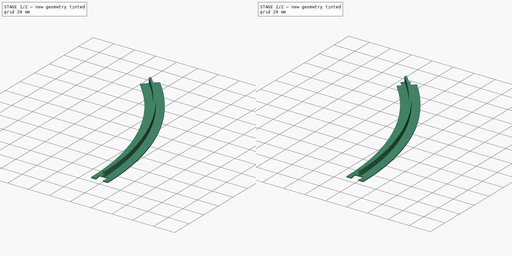
[diagram: build sequence overview — one tinted view per stage of 2, left to right]
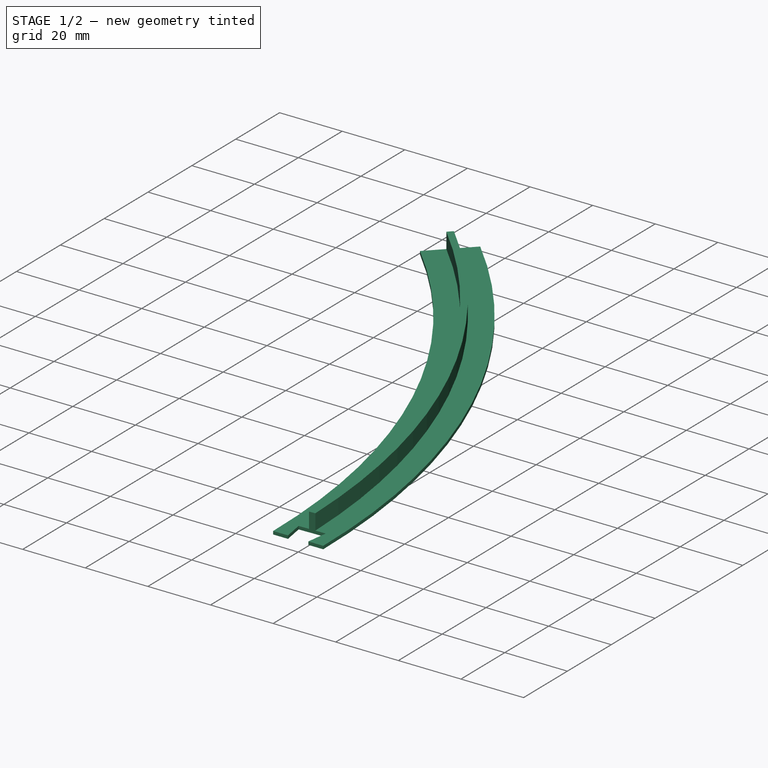
[diagram: stage 1 of 2 — iso view after this stage's code; geometry added in this stage tinted green]
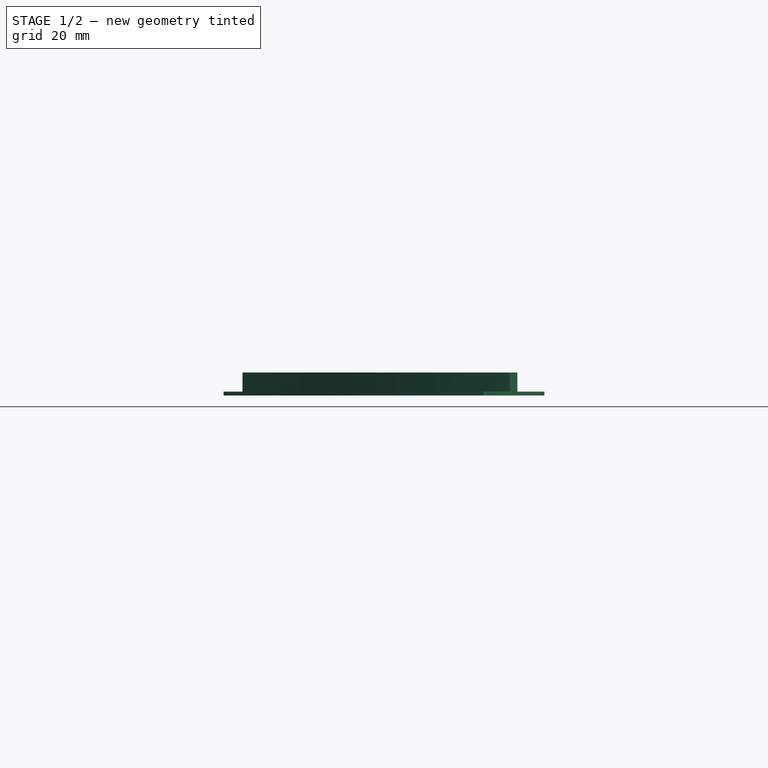
[diagram: stage 1 of 2 — front view after this stage's code; geometry added in this stage tinted green]
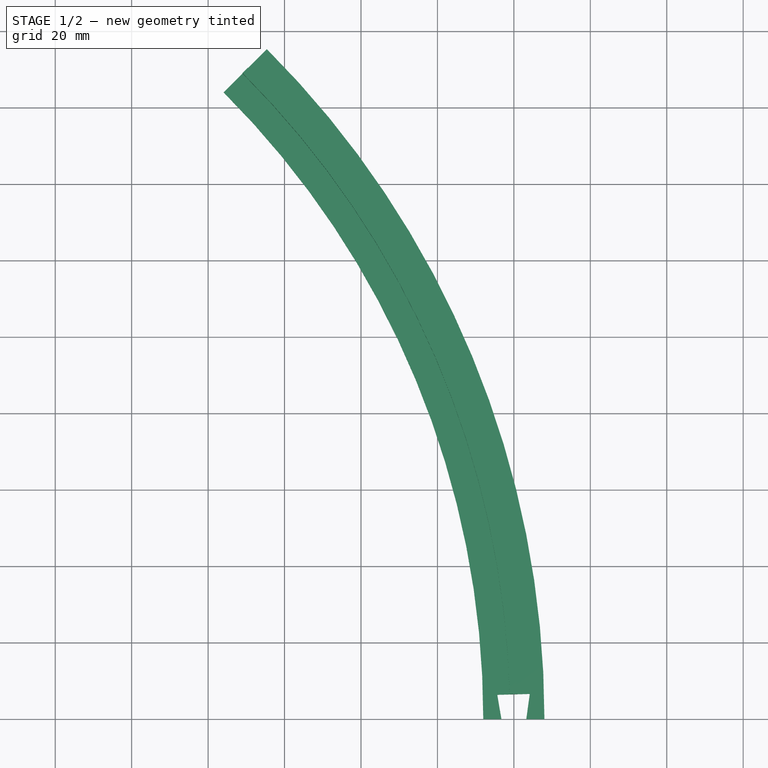
[diagram: stage 1 of 2 — top view after this stage's code; geometry added in this stage tinted green]
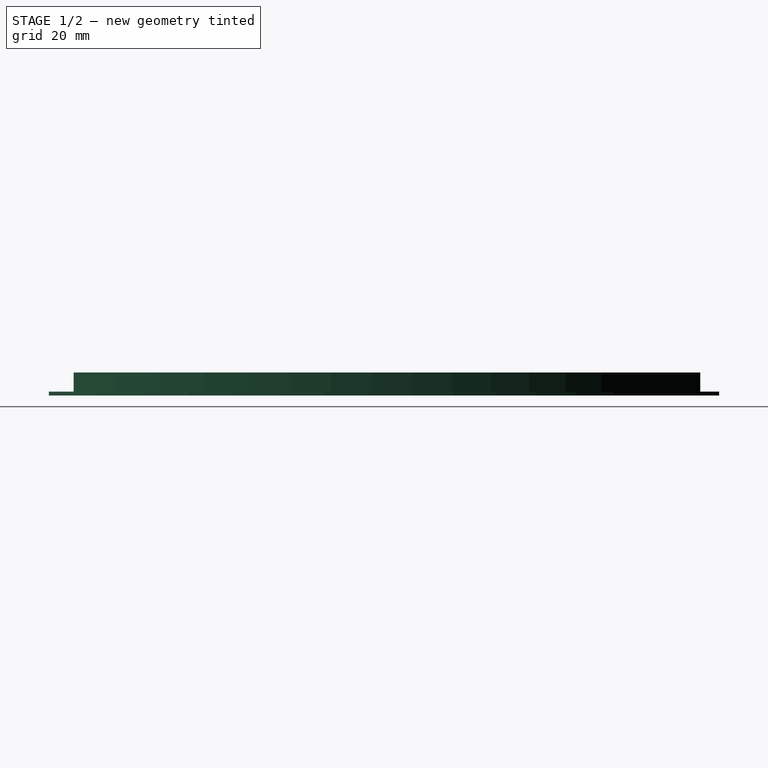
[diagram: stage 1 of 2 — right view after this stage's code; geometry added in this stage tinted green]
FCSTD DOCUMENT  (FreeCAD 1.0R39109 (Git))
Label: squirrel baffle reinforcement 3
License: All rights reserved
LicenseURL: https://en.wikipedia.org/wiki/All_rights_reserved
objects: Sketcher::SketchObject×4, PartDesign::Pocket×2, PartDesign::AdditivePipe×1, PartDesign::Body×1
note: 18 computed .brp shape members not serialized (recipe doc carries the construction recipe); baked Part::Feature solids carry a one-line shape summary decoded from their .brp

FEATURE [Sketcher::SketchObject] Sketch
  ArcFitTolerance = 1e-06
  AttachmentSupport = -> [XY_Plane]
  FullyConstrained = true
  MakeInternals = false
  MapMode = 5
  sketch-geometry (2):
    g0: ArcOfCircle CenterX=0 CenterY=0 CenterZ=0 NormalX=0 NormalY=0 NormalZ=1 AngleXU=0 Radius=240 StartAngle=0 EndAngle=0.785398
    g1: LineSegment [constr] StartX=0 StartY=0 StartZ=0 EndX=169.706 EndY=169.706 EndZ=0
  constraints (6):
    c: Coincident(g0,g-1)
    c: PointOnObject(g0,g-1)
    c: Diameter(g0) = 480
    c: Coincident(g1,g0)
    c: Coincident(g1,g0)
    c: Angle(g-1,g1) = 0.785398
FEATURE [Sketcher::SketchObject] Sketch001
  ArcFitTolerance = 1e-06
  AttachmentOffset = pos=(240,0,0) rot=(0,0,1;0rad)
  AttachmentSupport = -> [XZ_Plane]
  FullyConstrained = true
  MakeInternals = false
  MapMode = 5
  Placement = pos=(240,0,0) rot=(1,0,0;1.5708rad)
  sketch-geometry (8):
    g0: LineSegment StartX=-8 StartY=0 StartZ=0 EndX=8 EndY=0 EndZ=0
    g1: LineSegment StartX=8 StartY=0 StartZ=0 EndX=8 EndY=1 EndZ=0
    g2: LineSegment StartX=8 StartY=1 StartZ=0 EndX=1 EndY=1 EndZ=0
    g3: LineSegment StartX=1 StartY=1 StartZ=0 EndX=1 EndY=6 EndZ=0
    g4: LineSegment StartX=1 StartY=6 StartZ=0 EndX=-1 EndY=6 EndZ=0
    g5: LineSegment StartX=-1 StartY=6 StartZ=0 EndX=-1 EndY=1 EndZ=0
    g6: LineSegment StartX=-1 StartY=1 StartZ=0 EndX=-8 EndY=1 EndZ=0
    g7: LineSegment StartX=-8 StartY=1 StartZ=0 EndX=-8 EndY=0 EndZ=0
  constraints (20):
    c: PointOnObject(g0,g-1)
    c: Coincident(g0,g1)
    c: Coincident(g1,g2)
    c: Coincident(g2,g3)
    c: Coincident(g3,g4)
    c: Coincident(g4,g5)
    c: Vertical(g5)
    c: Coincident(g5,g6)
    c: Coincident(g6,g7)
    c: Coincident(g7,g0)
    c: Vertical(g7)
    c: Symmetric(g6,g1,g-2)
    c: Symmetric(g5,g2,g-2)
    c: Symmetric(g3,g4,g-2)
    c: Symmetric(g0,g0,g-1)
    c: Horizontal(g6)
    c: Distance(g7,g7) = 1
    c: DistanceX(g0,g0) = 16
    c: Distance(g4,g4) = 2
    c: DistanceY(g5,g5) = 5
FEATURE [PartDesign::AdditivePipe] AdditivePipe
  AuxilleryCurvelinear = true
  AuxillerySpineTangent = false
  Binormal = (0,0,0)
  Mode = 2
  Placement = pos=(0,0,0) rot=(1,0,0;1.5708rad)
  Profile = -> Sketch001
  Refine = true
  Spine = -> Sketch
  SpineTangent = false
  Suppressed = false
  Transformation = 0
  Transition = 0
FEATURE [Sketcher::SketchObject] Sketch002
  ArcFitTolerance = 1e-06
  AttachmentSupport = -> [XY_Plane]
  ExternalGeometry = -> [Sketch]
  FullyConstrained = false
  MakeInternals = false
  MapMode = 5
  sketch-geometry (7):
    g0: LineSegment [constr] StartX=204.863 StartY=5.5499 StartZ=0 EndX=271.088 EndY=7.34398 EndZ=0
    g1: LineSegment StartX=235.664 StartY=6.38431 StartZ=0 EndX=236.75 EndY=0 EndZ=0
    g2: LineSegment StartX=236.75 StartY=0 StartZ=0 EndX=243.25 EndY=0 EndZ=0
    g3: LineSegment StartX=243.25 StartY=0 StartZ=0 EndX=244.16 EndY=6.6145 EndZ=0
    g4: GeomPoint X=239.912 Y=6.4994 Z=0
    g5: LineSegment [constr] StartX=244.16 StartY=6.6145 StartZ=0 EndX=246.759 EndY=25.4971 EndZ=0
    g6: LineSegment StartX=235.664 StartY=6.38431 StartZ=0 EndX=244.16 EndY=6.6145 EndZ=0
  constraints (16):
    c: PointOnObject(g1,g-1)
    c: Coincident(g1,g2)
    c: Coincident(g2,g3)
    c: Perpendicular(g-3,g0)
    c: PointOnObject(g1,g0)
    c: Symmetric(g1,g3,g4)
    c: PointOnObject(g4,g0)
    c: PointOnObject(g4,g-3)
    c: Symmetric(g2,g1,g-3)
    c: DistanceX(g1,g2) = 6.5
    c: Distance(g4,g-3) = 6.5
    c: Coincident(g5,g3)
    c: Parallel(g5,g3)
    c: Distance(g3,g1) = 8.5
    c: Coincident(g6,g1)
    c: Coincident(g6,g3)
FEATURE [PartDesign::Pocket] Pocket
  BaseFeature = -> AdditivePipe
  Direction = (0,0,-1)
  Length = 5
  Length2 = 5
  Midplane = true
  Placement = pos=(0,0,0) rot=(1,0,0;1.5708rad)
  Profile = -> Sketch002
  ReferenceAxis = -> Sketch002 [N_Axis]
  Refine = true
  Suppressed = false
  Type = 1
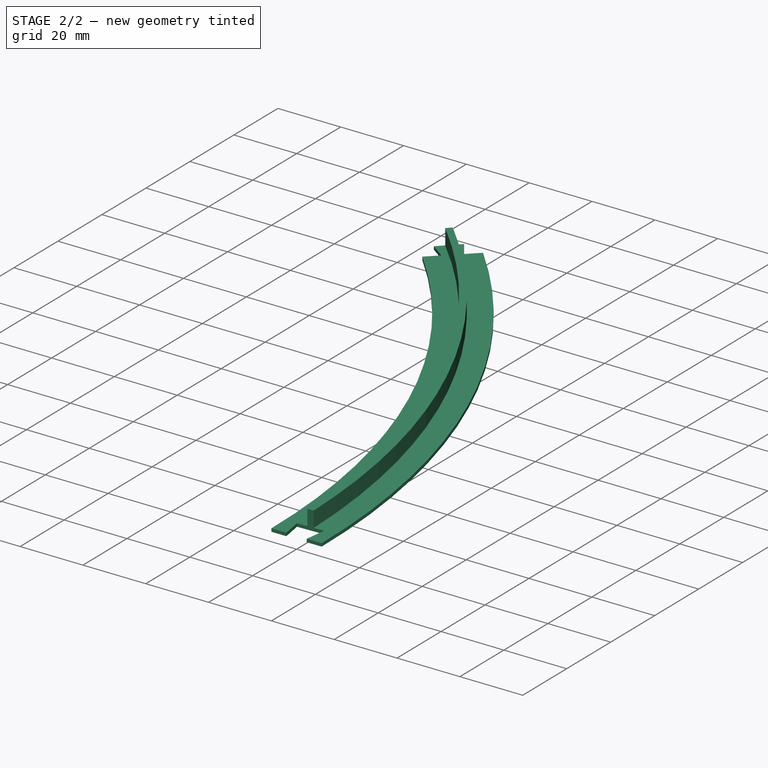
[diagram: stage 2 of 2 — iso view after this stage's code; geometry added in this stage tinted green]
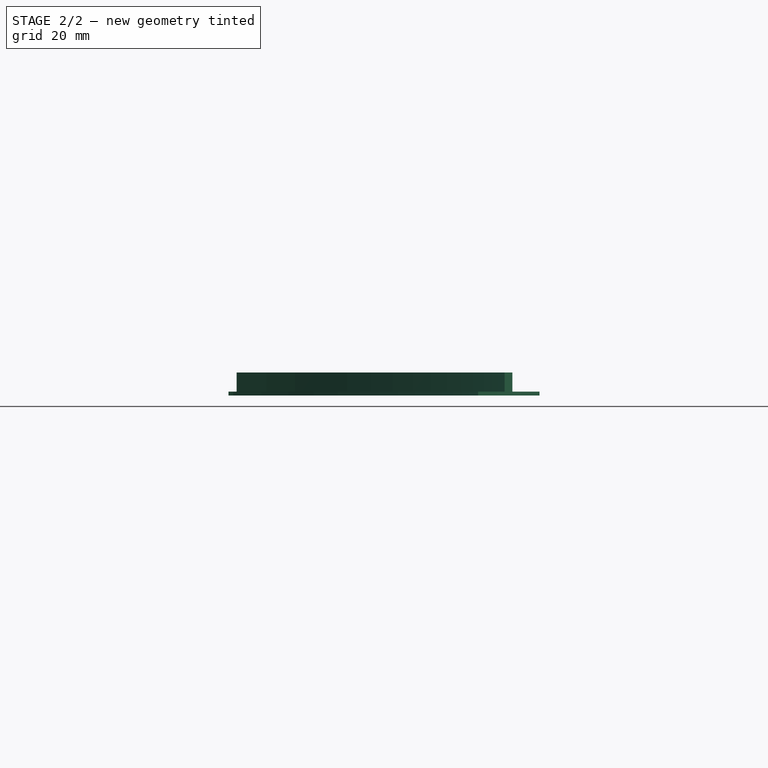
[diagram: stage 2 of 2 — front view after this stage's code; geometry added in this stage tinted green]
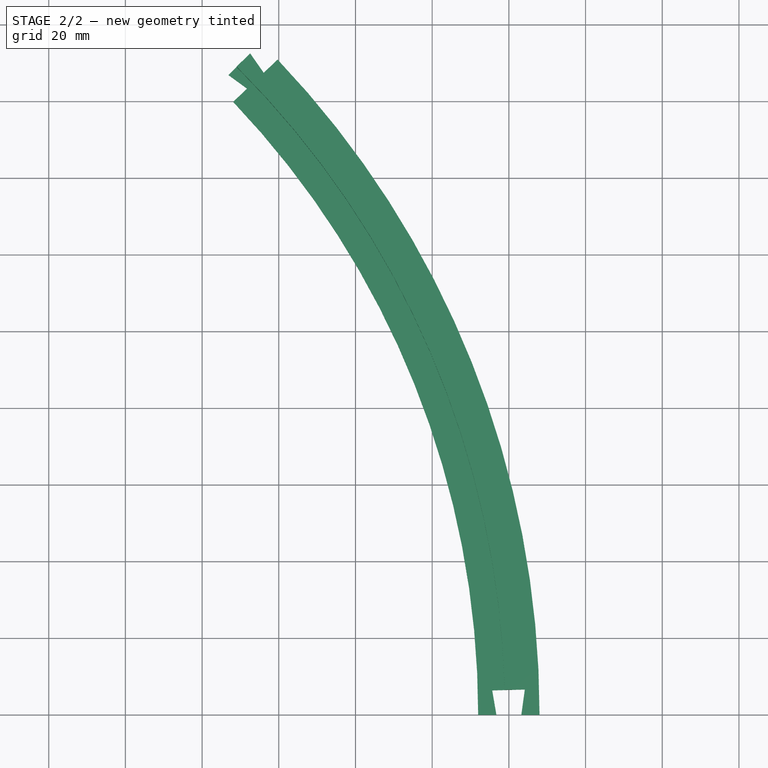
[diagram: stage 2 of 2 — top view after this stage's code; geometry added in this stage tinted green]
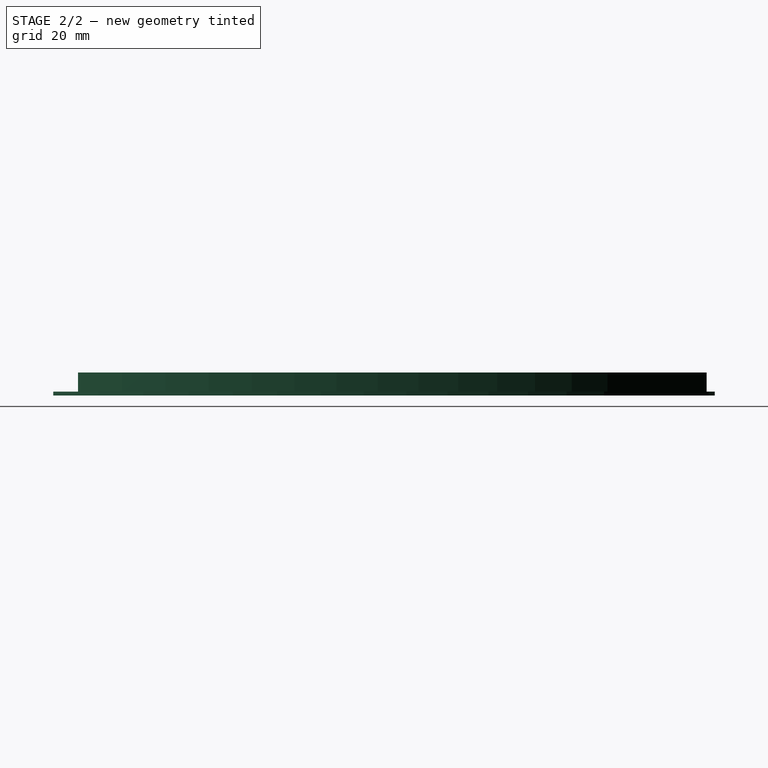
[diagram: stage 2 of 2 — right view after this stage's code; geometry added in this stage tinted green]
FEATURE [Sketcher::SketchObject] Sketch003
  ArcFitTolerance = 1e-06
  AttachmentSupport = -> [XY_Plane]
  ExternalGeometry = -> [Sketch]
  FullyConstrained = true
  MakeInternals = false
  MapMode = 5
  sketch-geometry (11):
    g0: LineSegment [constr] StartX=126.991 StartY=126.991 StartZ=0 EndX=196.774 EndY=196.774 EndZ=0
    g1: LineSegment [constr] StartX=132.734 StartY=126.258 StartZ=0 EndX=203.125 EndY=193.214 EndZ=0
    g2: LineSegment StartX=166.877 StartY=166.877 StartZ=0 EndX=171.721 EndY=163.343 EndZ=0
    g3: LineSegment StartX=166.877 StartY=166.877 StartZ=0 EndX=152.028 EndY=152.028 EndZ=0
    g4: LineSegment StartX=152.028 StartY=152.028 StartZ=0 EndX=155.732 EndY=148.134 EndZ=0
    g5: LineSegment StartX=155.732 StartY=148.134 StartZ=0 EndX=171.721 EndY=163.343 EndZ=0
    g6: LineSegment StartX=172.534 StartY=172.534 StartZ=0 EndX=176.069 EndY=167.478 EndZ=0
    g7: LineSegment StartX=176.069 StartY=167.478 StartZ=0 EndX=192.058 EndY=182.687 EndZ=0
    g8: LineSegment StartX=192.058 StartY=182.687 StartZ=0 EndX=187.383 EndY=187.383 EndZ=0
    g9: LineSegment StartX=187.383 StartY=187.383 StartZ=0 EndX=172.534 EndY=172.534 EndZ=0
    g10: GeomPoint X=173.895 Y=165.41 Z=0
  constraints (28):
    c: Perpendicular(g-3,g0)
    c: Perpendicular(g-3,g1)
    c: PointOnObject(g2,g0)
    c: PointOnObject(g2,g1)
    c: Coincident(g3,g2)
    c: Coincident(g4,g3)
    c: Coincident(g5,g4)
    c: Coincident(g5,g2)
    c: Coincident(g7,g6)
    c: Coincident(g8,g7)
    c: Coincident(g9,g8)
    c: Coincident(g9,g6)
    c: Parallel(g5,g1)
    c: PointOnObject(g10,g-3)
    c: PointOnObject(g-3,g0)
    c: Perpendicular(g4,g5)
    c: PointOnObject(g10,g1)
    c: Distance(g2,g6) = 6
    c: Distance(g6,g2) = 8
    c: Symmetric(g2,g6,g10)
    c: Symmetric(g2,g6,g-3)
    c: PointOnObject(g3,g0)
    c: Symmetric(g8,g3,g-3)
    c: Symmetric(g7,g4,g10)
    c: Distance(g8,g3) = 50
    c: Distance(g-3,g10) = 6
    c: Block(g1)
    c: Block(g0)
FEATURE [PartDesign::Pocket] Pocket001
  BaseFeature = -> Pocket
  Direction = (0,0,-1)
  Length = 5
  Length2 = 5
  Midplane = true
  Placement = pos=(0,0,0) rot=(1,0,0;1.5708rad)
  Profile = -> Sketch003
  ReferenceAxis = -> Sketch003 [N_Axis]
  Refine = true
  Suppressed = false
  Type = 1
FEATURE [PartDesign::Body] Body
  AllowCompound = false
  Group = -> [Sketch,Sketch001,AdditivePipe,Sketch002,Pocket,Sketch003,Pocket001]
  Origin = -> Origin
  Tip = -> Pocket001
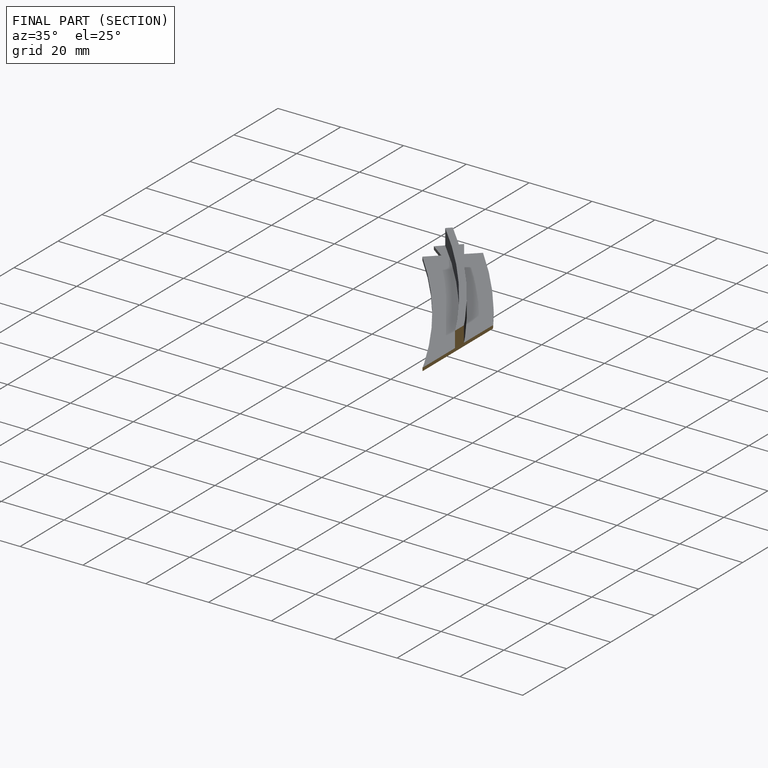
[diagram: finished part — half-section view (interior)]
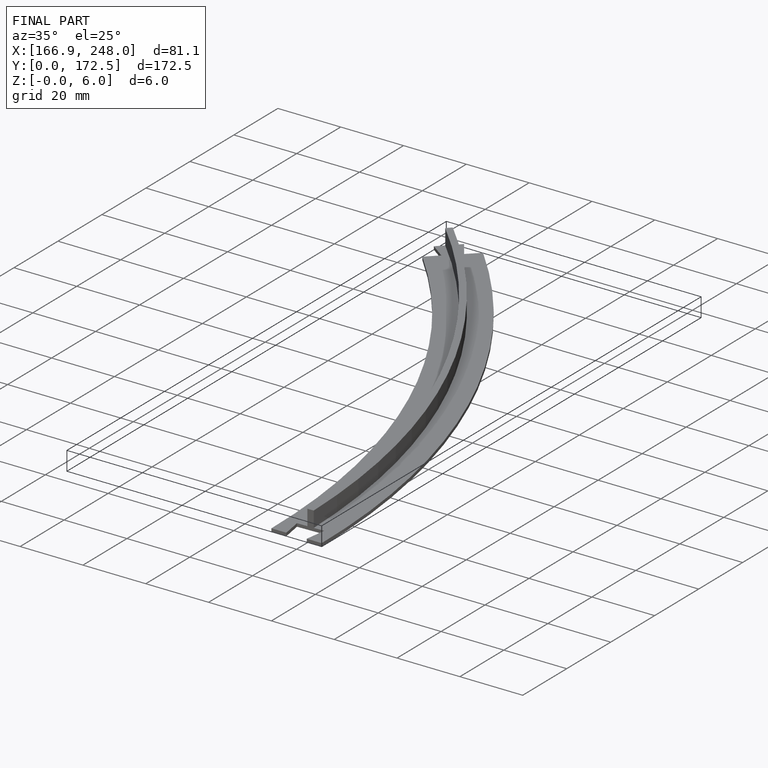
[diagram: finished part — iso view with bounding-box wireframe]
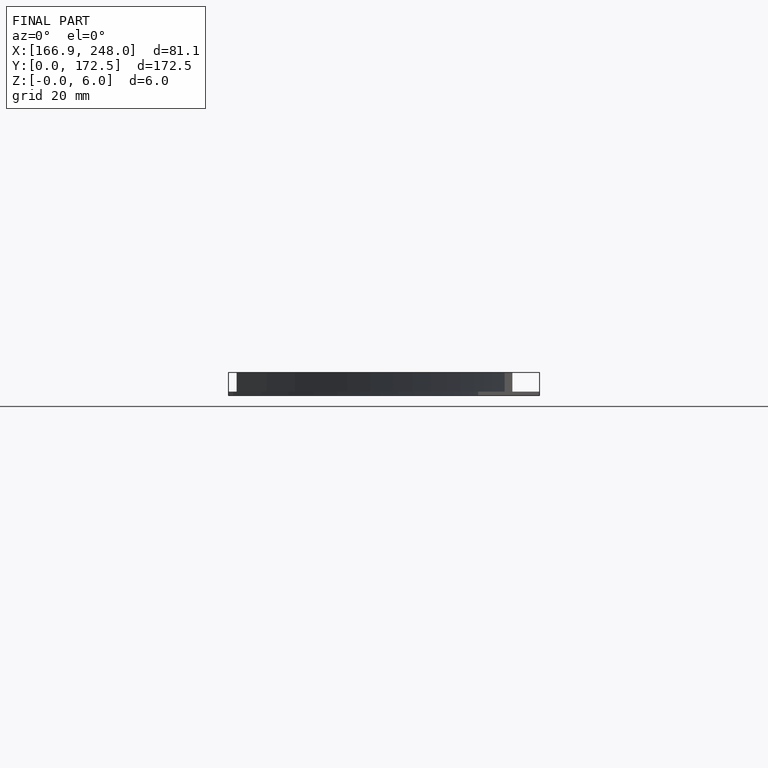
[diagram: finished part — front view with bounding-box wireframe]
